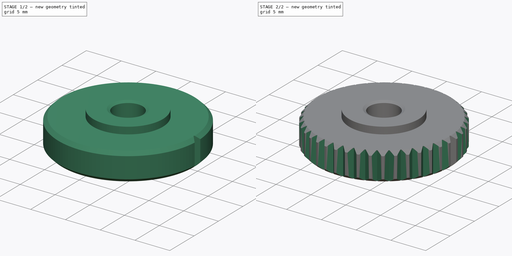
[diagram: build sequence overview — one tinted view per stage of 2, left to right]
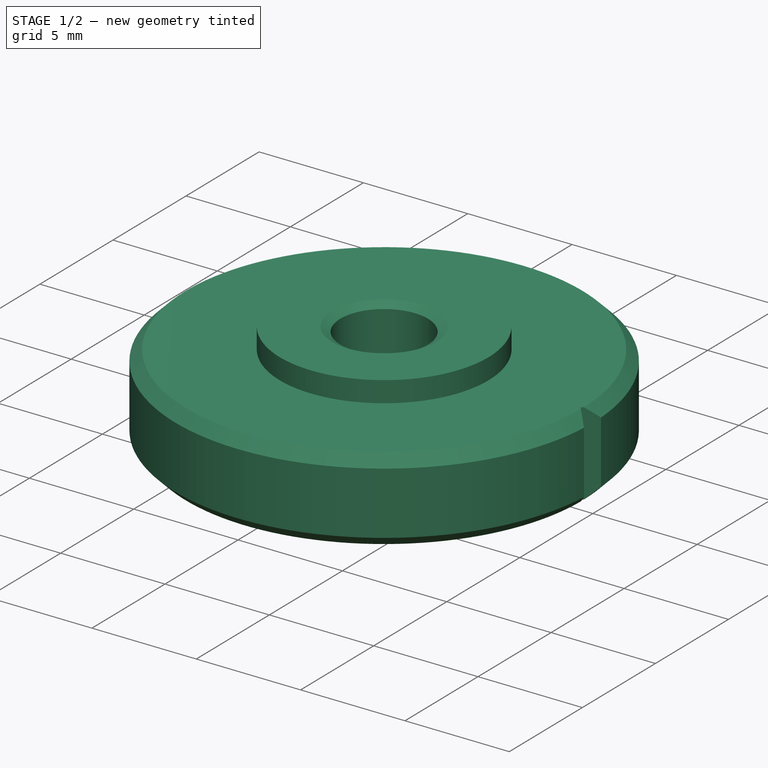
[diagram: stage 1 of 2 — iso view after this stage's code; geometry added in this stage tinted green]
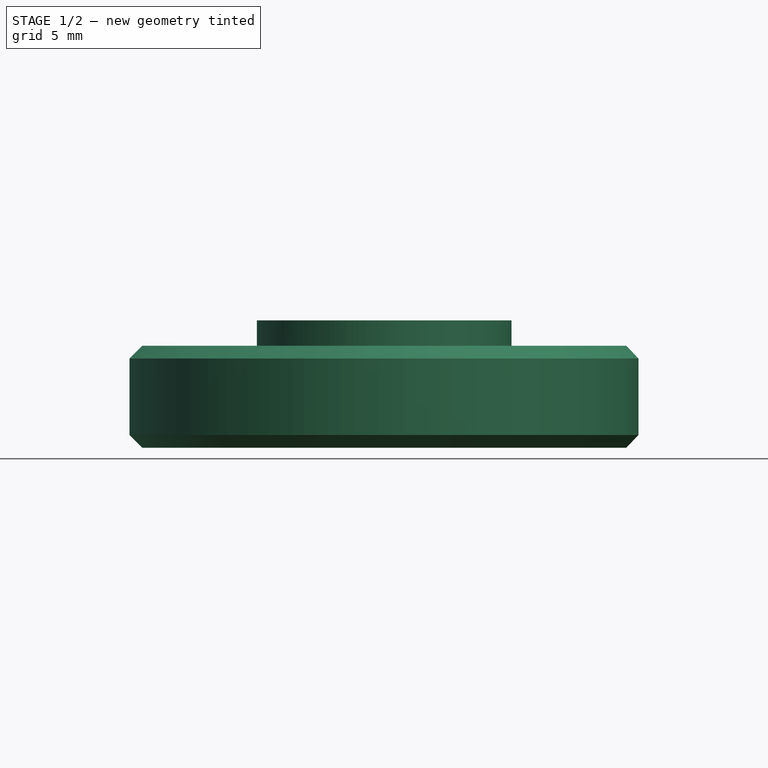
[diagram: stage 1 of 2 — front view after this stage's code; geometry added in this stage tinted green]
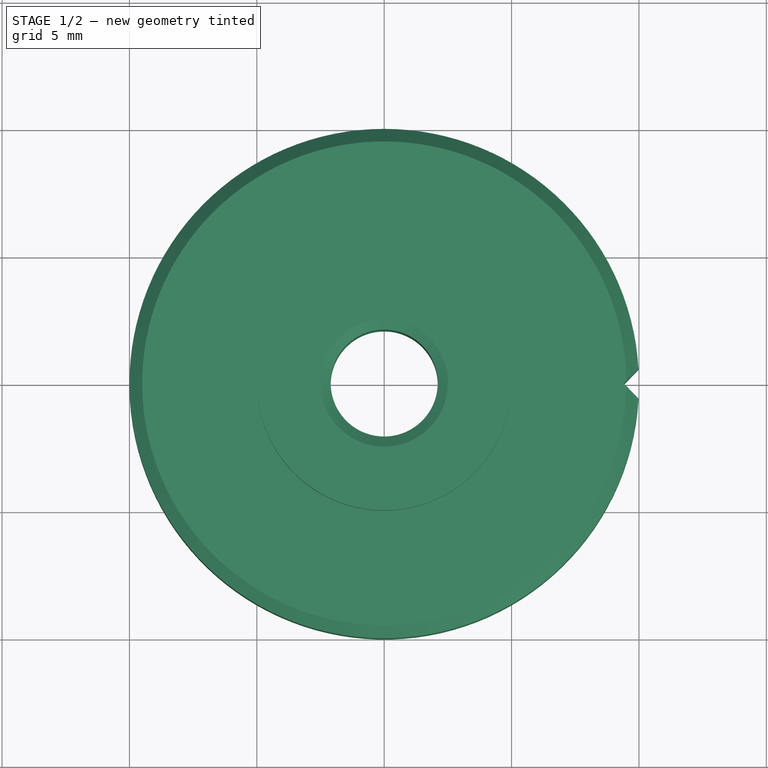
[diagram: stage 1 of 2 — top view after this stage's code; geometry added in this stage tinted green]
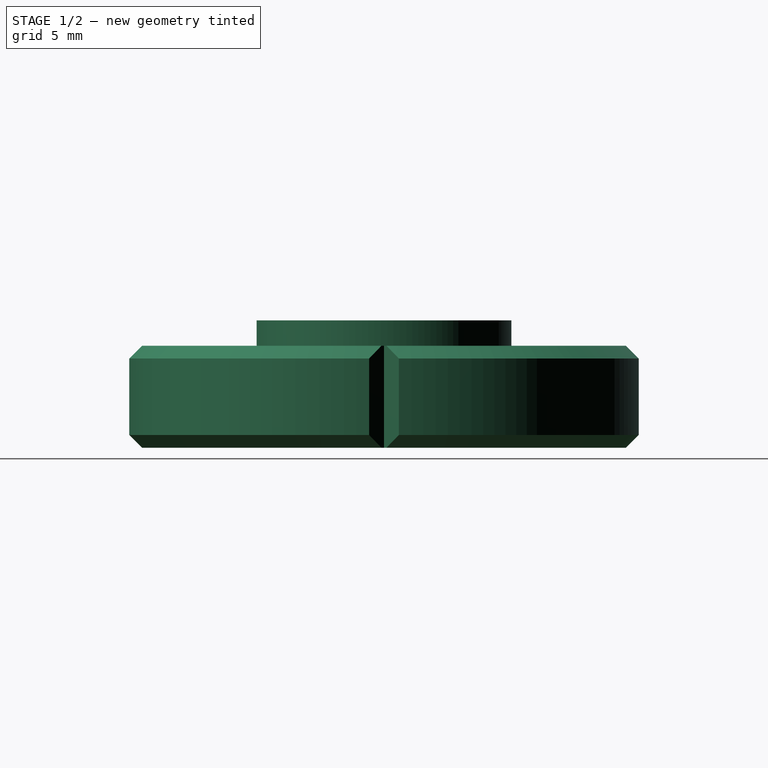
[diagram: stage 1 of 2 — right view after this stage's code; geometry added in this stage tinted green]
FCSTD DOCUMENT  (FreeCAD 0.15R4250 (Git))
Label: Raendelmutter_DIN_467-M5
License: CC-BY 3.0
LicenseURL: http://creativecommons.org/licenses/by/3.0/
objects: Sketcher::SketchObject×2, PartDesign::Revolution×1, PartDesign::Pocket×1, PartDesign::PolarPattern×1, Part::Feature×1
note: 8 computed .brp shape members not serialized (recipe doc carries the construction recipe); baked Part::Feature solids carry a one-line shape summary decoded from their .brp

FEATURE [Sketcher::SketchObject] Sketch
  Placement = pos=(0,0,0) rot=(0.57735,0.57735,0.57735;2.0944rad)
  sketch-geometry (12):
    g0: LineSegment StartX=2.1 StartY=0.23094 StartZ=0 EndX=2.1 EndY=4.76906 EndZ=0
    g1: LineSegment StartX=2.1 StartY=4.76906 StartZ=0 EndX=2.5 EndY=5 EndZ=0
    g2: LineSegment StartX=2.5 StartY=5 StartZ=0 EndX=5 EndY=5 EndZ=0
    g3: LineSegment StartX=5 StartY=5 StartZ=0 EndX=5 EndY=4 EndZ=0
    g4: LineSegment StartX=5 StartY=4 StartZ=0 EndX=9.5 EndY=4 EndZ=0
    g5: LineSegment StartX=9.5 StartY=4 StartZ=0 EndX=10 EndY=3.5 EndZ=0
    g6: LineSegment StartX=10 StartY=3.5 StartZ=0 EndX=10 EndY=0.5 EndZ=0
    g7: LineSegment StartX=10 StartY=0.5 StartZ=0 EndX=9.5 EndY=0 EndZ=0
    g8: LineSegment StartX=9.5 StartY=0 StartZ=0 EndX=2.5 EndY=0 EndZ=0
    g9: LineSegment StartX=2.5 StartY=0 StartZ=0 EndX=2.1 EndY=0.23094 EndZ=0
    g10: LineSegment [constr] StartX=2.5 StartY=5 StartZ=0 EndX=2.5 EndY=0 EndZ=0
    g11: LineSegment [constr] StartX=9.5 StartY=4 StartZ=0 EndX=9.5 EndY=0 EndZ=0
  constraints (34):
    c: Vertical(g0)
    c: Coincident(g0,g1)
    c: Coincident(g1,g2)
    c: Horizontal(g2)
    c: Coincident(g2,g3)
    c: Vertical(g3)
    c: Coincident(g3,g4)
    c: Horizontal(g4)
    c: Coincident(g4,g5)
    c: Coincident(g5,g6)
    c: Vertical(g6)
    c: Coincident(g6,g7)
    c: PointOnObject(g7,g-1)
    c: Coincident(g7,g8)
    c: PointOnObject(g8,g-1)
    c: Coincident(g8,g9)
    c: Coincident(g9,g0)
    c: Equal(g7,g5)
    c: Equal(g9,g1)
    c: Coincident(g10,g1)
    c: Coincident(g10,g8)
    c: Vertical(g10)
    c: Coincident(g11,g4)
    c: Coincident(g11,g7)
    c: Vertical(g11)
    c: DistanceY(g11) = -4
    c: DistanceX(g-1,g0) = 2.1
    c: DistanceX(g-1,g8) = 2.5
    c: DistanceX(g-1,g2) = 5
    c: Angle(g9,g1) = 1.0472
    c: Perpendicular(g7,g5)
    c: DistanceY(g5) = -0.5
    c: DistanceY(g7,g2) = 5
    c: DistanceX(g-1,g6) = 10
FEATURE [PartDesign::Revolution] Revolution
  Angle = 360
  Axis = (0,0,1)
  Base = (0,0,0)
  Placement = pos=(0,0,0) rot=(0.57735,0.57735,0.57735;2.0944rad)
  ReferenceAxis = -> Sketch [V_Axis]
  Reversed = true
  Sketch = -> Sketch
FEATURE [Sketcher::SketchObject] Sketch001
  Placement = pos=(0,0,0) rot=(0.707107,0.707107,0;3.14159rad)
  Support = -> Revolution [Face9]
  sketch-geometry (3):
    g0: LineSegment StartX=0 StartY=9.4 StartZ=0 EndX=-0.7 EndY=10.1 EndZ=0
    g1: LineSegment StartX=-0.7 StartY=10.1 StartZ=0 EndX=0.7 EndY=10.1 EndZ=0
    g2: LineSegment StartX=0.7 StartY=10.1 StartZ=0 EndX=0 EndY=9.4 EndZ=0
  constraints (9):
    c: PointOnObject(g0,g-2)
    c: Coincident(g0,g1)
    c: Horizontal(g1)
    c: Coincident(g1,g2)
    c: Coincident(g2,g0)
    c: Equal(g2,g0)
    c: Perpendicular(g2,g0)
    c: DistanceY(g-1,g0) = 9.4
    c: DistanceY(g2) = -0.7
FEATURE [PartDesign::Pocket] Pocket
  Length = 5
  Placement = pos=(0,0,0) rot=(0.57735,0.57735,0.57735;2.0944rad)
  Sketch = -> Sketch001
  Type = 1
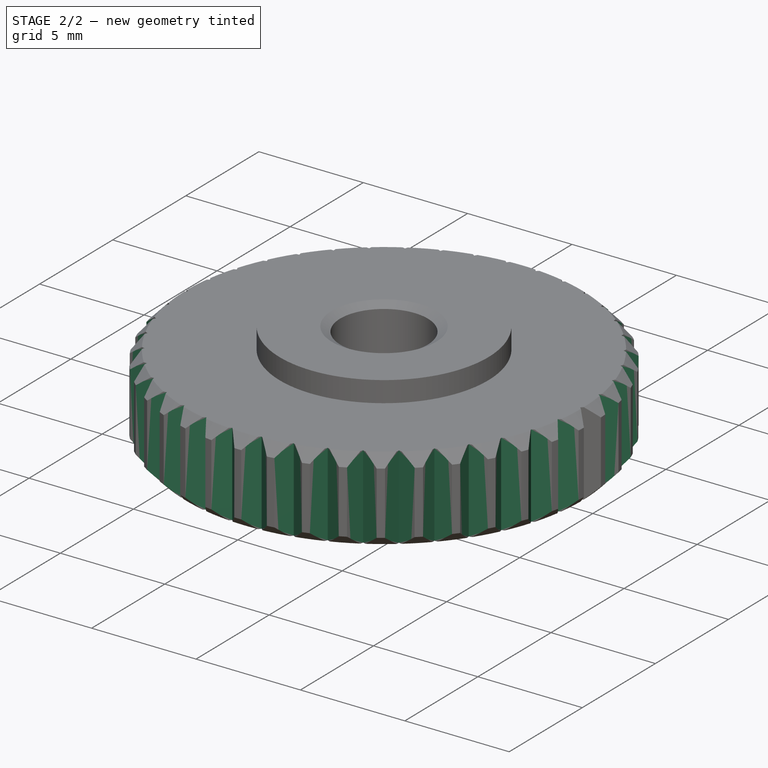
[diagram: stage 2 of 2 — iso view after this stage's code; geometry added in this stage tinted green]
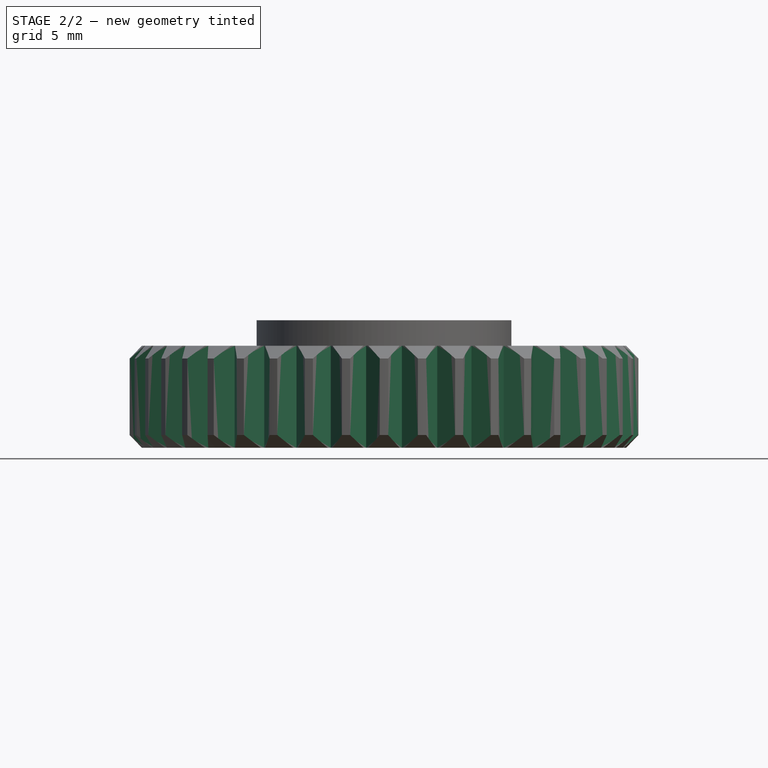
[diagram: stage 2 of 2 — front view after this stage's code; geometry added in this stage tinted green]
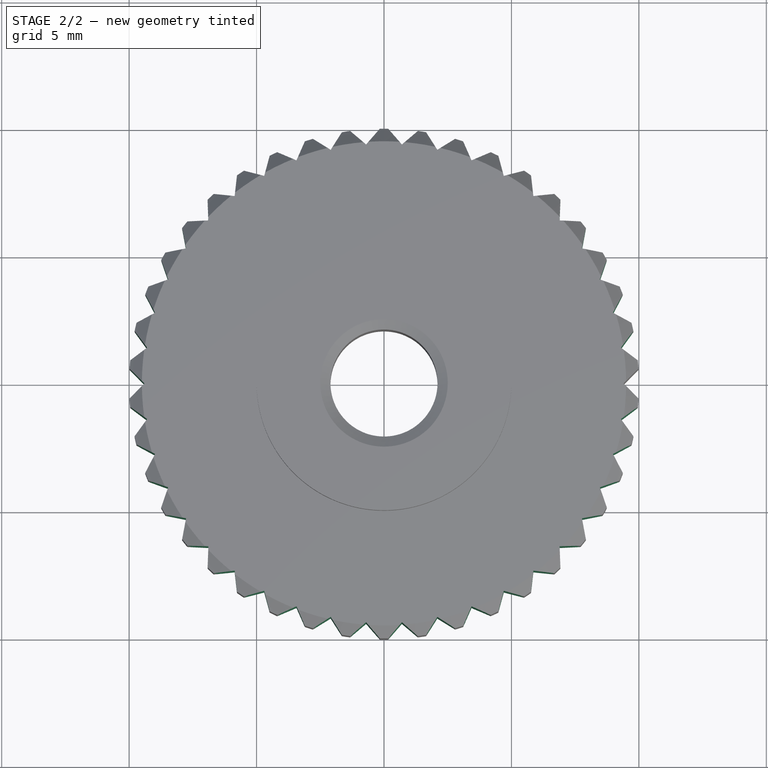
[diagram: stage 2 of 2 — top view after this stage's code; geometry added in this stage tinted green]
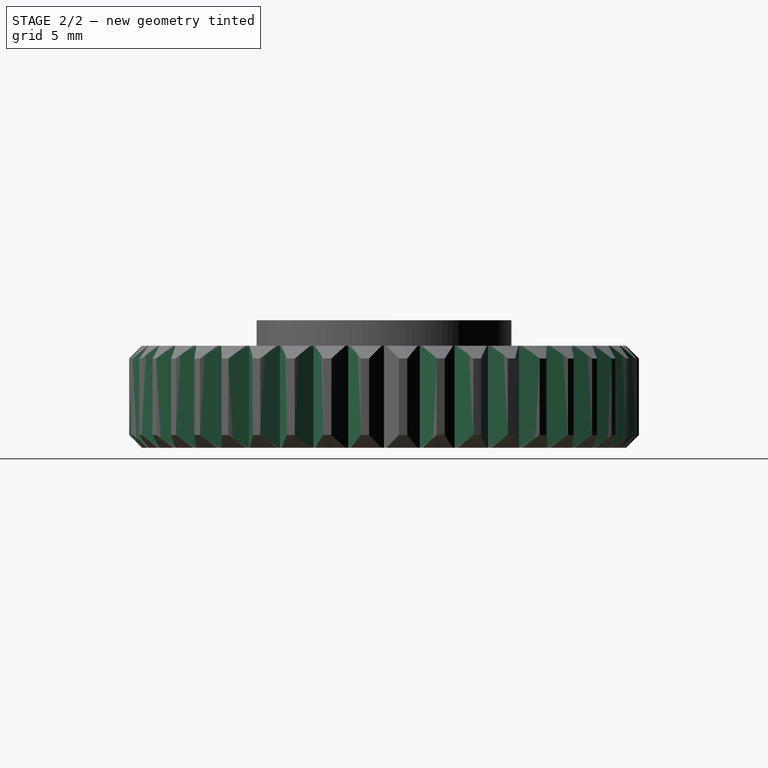
[diagram: stage 2 of 2 — right view after this stage's code; geometry added in this stage tinted green]
FEATURE [PartDesign::PolarPattern] PolarPattern
  Angle = 360
  Axis = -> Sketch001 [N_Axis]
  Occurrences = 42
  Originals = -> [Pocket]
  Placement = pos=(0,0,0) rot=(0.57735,0.57735,0.57735;2.0944rad)
FEATURE [Part::Feature] PolarPattern001  label="Rändelmutter DIN 467-M5 #001"
  Placement = pos=(0,0,0) rot=(0.57735,0.57735,0.57735;2.0944rad)
  shape: bbox 20 x 20 x 5 mm, 220 faces (baked)
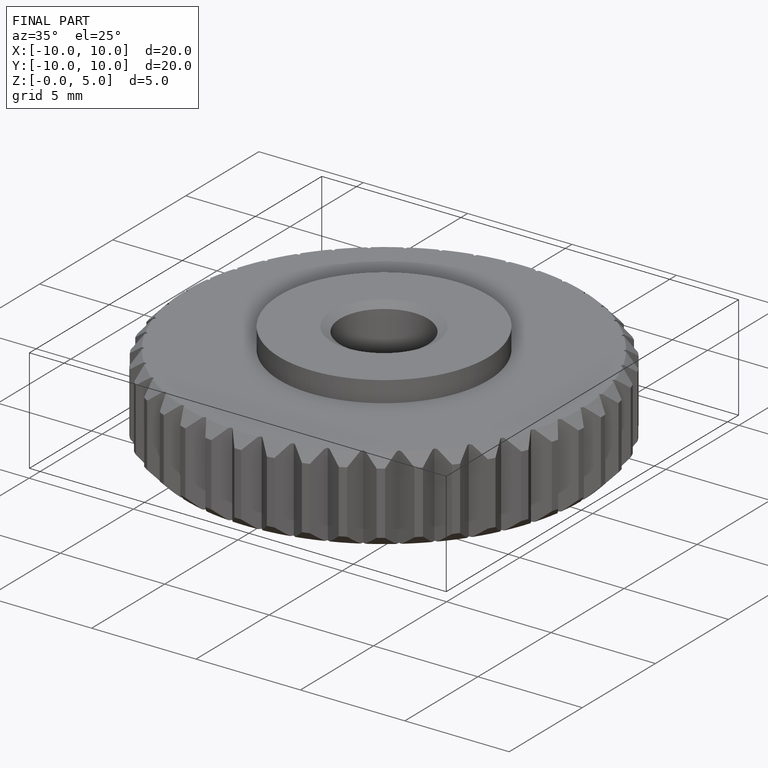
[diagram: finished part — iso view with bounding-box wireframe]
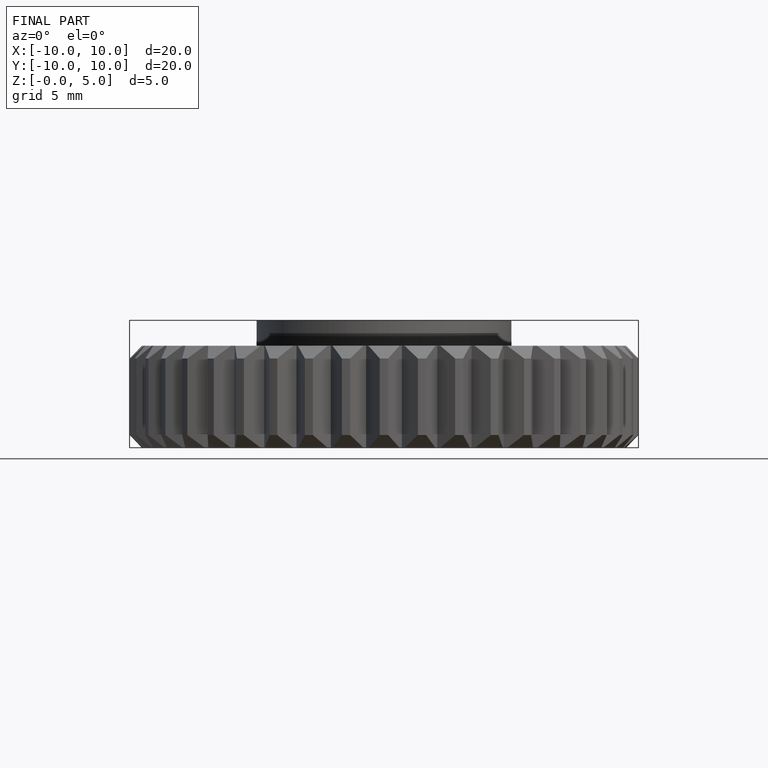
[diagram: finished part — front view with bounding-box wireframe]
